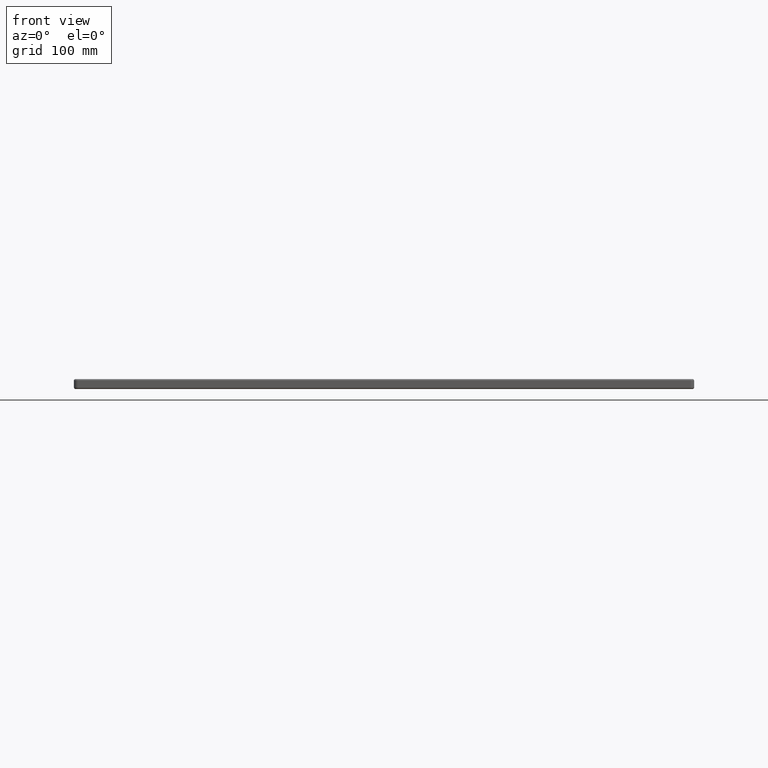
[diagram: clean part render]
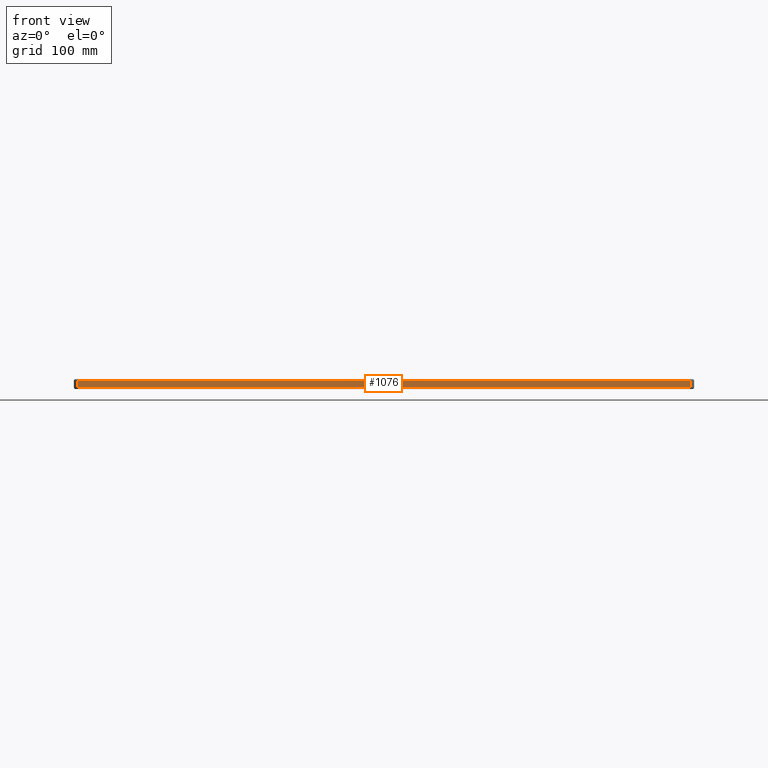
[diagram: same view with one face highlighted and labeled with its STEP entity id]
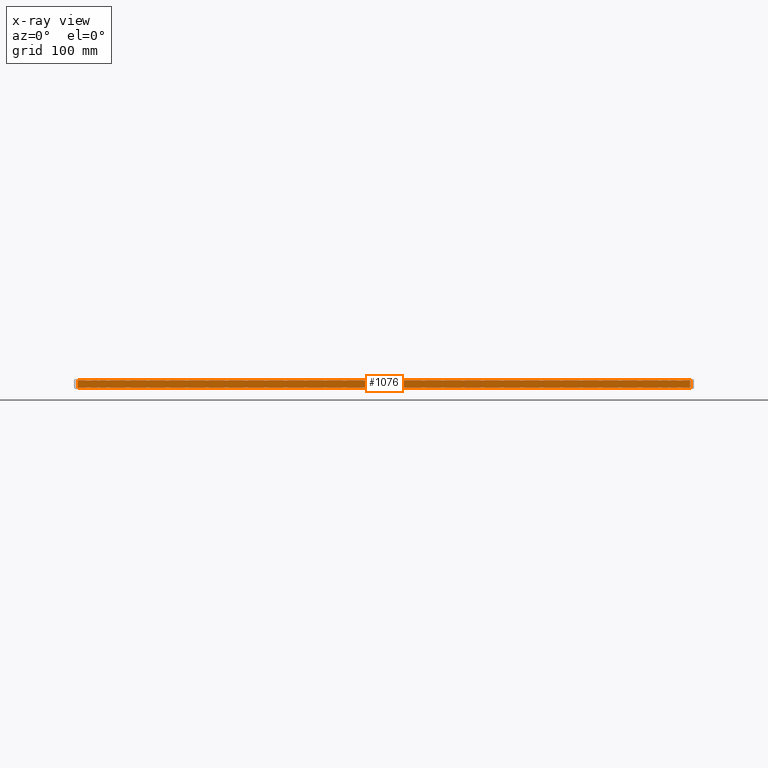
[diagram: x-ray of the same camera — body ghosted, the highlighted face saturated]
A machine part, front view. The second image highlights one B-rep face of the part: STEP entity #1076.
The next image is the same camera in x-ray: the body ghosted, the highlighted face saturated — about 0% of this face is hidden behind the body in this view.
In plain terms, the highlighted planar face has unit normal (0, -1, 0).
Its self-contained STEP definition (entity closure, byte-faithful):
#1076 = ADVANCED_FACE ( 'NONE', ( #34452 ), #16270, .T. ) ;
#1083 = VECTOR ( 'NONE', #31417, 1000.000000000000000 ) ;
#1597 = VERTEX_POINT ( 'NONE', #6626 ) ;
#2454 = CARTESIAN_POINT ( 'NONE',  ( 0.0000000000000000000, 0.0000000000000000000, -11.00000000000000000 ) ) ;
#2892 = DIRECTION ( 'NONE',  ( -1.000000000000000000, -0.0000000000000000000, 0.0000000000000000000 ) ) ;
#5398 = DIRECTION ( 'NONE',  ( -0.0000000000000000000, 0.0000000000000000000, 1.000000000000000000 ) ) ;
#5933 = DIRECTION ( 'NONE',  ( 1.000000000000000000, 0.0000000000000000000, 0.0000000000000000000 ) ) ;
#6160 = AXIS2_PLACEMENT_3D ( 'NONE', #40653, #19769, #15814 ) ;
#6626 = CARTESIAN_POINT ( 'NONE',  ( 795.0000000000000000, 0.0000000000000000000, -2.000000000000000000 ) ) ;
#9797 = VECTOR ( 'NONE', #2892, 1000.000000000000000 ) ;
#10237 = EDGE_LOOP ( 'NONE', ( #31278, #32111, #34614, #18190 ) ) ;
#10794 = LINE ( 'NONE', #2454, #23834 ) ;
#11428 = VECTOR ( 'NONE', #5398, 1000.000000000000000 ) ;
#11617 = EDGE_CURVE ( 'NONE', #19028, #18558, #10794, .T. ) ;
#12259 = CARTESIAN_POINT ( 'NONE',  ( 4.999999999999999100, 0.0000000000000000000, -11.00000000000000000 ) ) ;
#13356 = CARTESIAN_POINT ( 'NONE',  ( 4.999999999999999100, 0.0000000000000000000, -2.000000000000000000 ) ) ;
#14767 = EDGE_CURVE ( 'NONE', #1597, #26986, #43103, .T. ) ;
#15814 = DIRECTION ( 'NONE',  ( 0.0000000000000000000, -0.0000000000000000000, -1.000000000000000000 ) ) ;
#16270 = PLANE ( 'NONE',  #6160 ) ;
#18190 = ORIENTED_EDGE ( 'NONE', *, *, #14767, .T. ) ;
#18558 = VERTEX_POINT ( 'NONE', #43436 ) ;
#19028 = VERTEX_POINT ( 'NONE', #12259 ) ;
#19769 = DIRECTION ( 'NONE',  ( 0.0000000000000000000, -1.000000000000000000, 0.0000000000000000000 ) ) ;
#22285 = LINE ( 'NONE', #42586, #1083 ) ;
#23834 = VECTOR ( 'NONE', #5933, 1000.000000000000000 ) ;
#26986 = VERTEX_POINT ( 'NONE', #29102 ) ;
#29102 = CARTESIAN_POINT ( 'NONE',  ( 4.999999999999999100, 0.0000000000000000000, -2.000000000000000000 ) ) ;
#31278 = ORIENTED_EDGE ( 'NONE', *, *, #33475, .T. ) ;
#31417 = DIRECTION ( 'NONE',  ( -0.0000000000000000000, -0.0000000000000000000, -1.000000000000000000 ) ) ;
#32111 = ORIENTED_EDGE ( 'NONE', *, *, #11617, .T. ) ;
#33397 = CARTESIAN_POINT ( 'NONE',  ( 795.0000000000000000, 0.0000000000000000000, -13.00000000000000000 ) ) ;
#33475 = EDGE_CURVE ( 'NONE', #26986, #19028, #22285, .T. ) ;
#34452 = FACE_OUTER_BOUND ( 'NONE', #10237, .T. ) ;
#34614 = ORIENTED_EDGE ( 'NONE', *, *, #38859, .T. ) ;
#38859 = EDGE_CURVE ( 'NONE', #18558, #1597, #39226, .T. ) ;
#39226 = LINE ( 'NONE', #33397, #11428 ) ;
#40653 = CARTESIAN_POINT ( 'NONE',  ( 0.0000000000000000000, 0.0000000000000000000, -13.00000000000000000 ) ) ;
#42586 = CARTESIAN_POINT ( 'NONE',  ( 4.999999999999999100, 0.0000000000000000000, -13.00000000000000000 ) ) ;
#43103 = LINE ( 'NONE', #13356, #9797 ) ;
#43436 = CARTESIAN_POINT ( 'NONE',  ( 795.0000000000000000, 0.0000000000000000000, -11.00000000000000000 ) ) ;